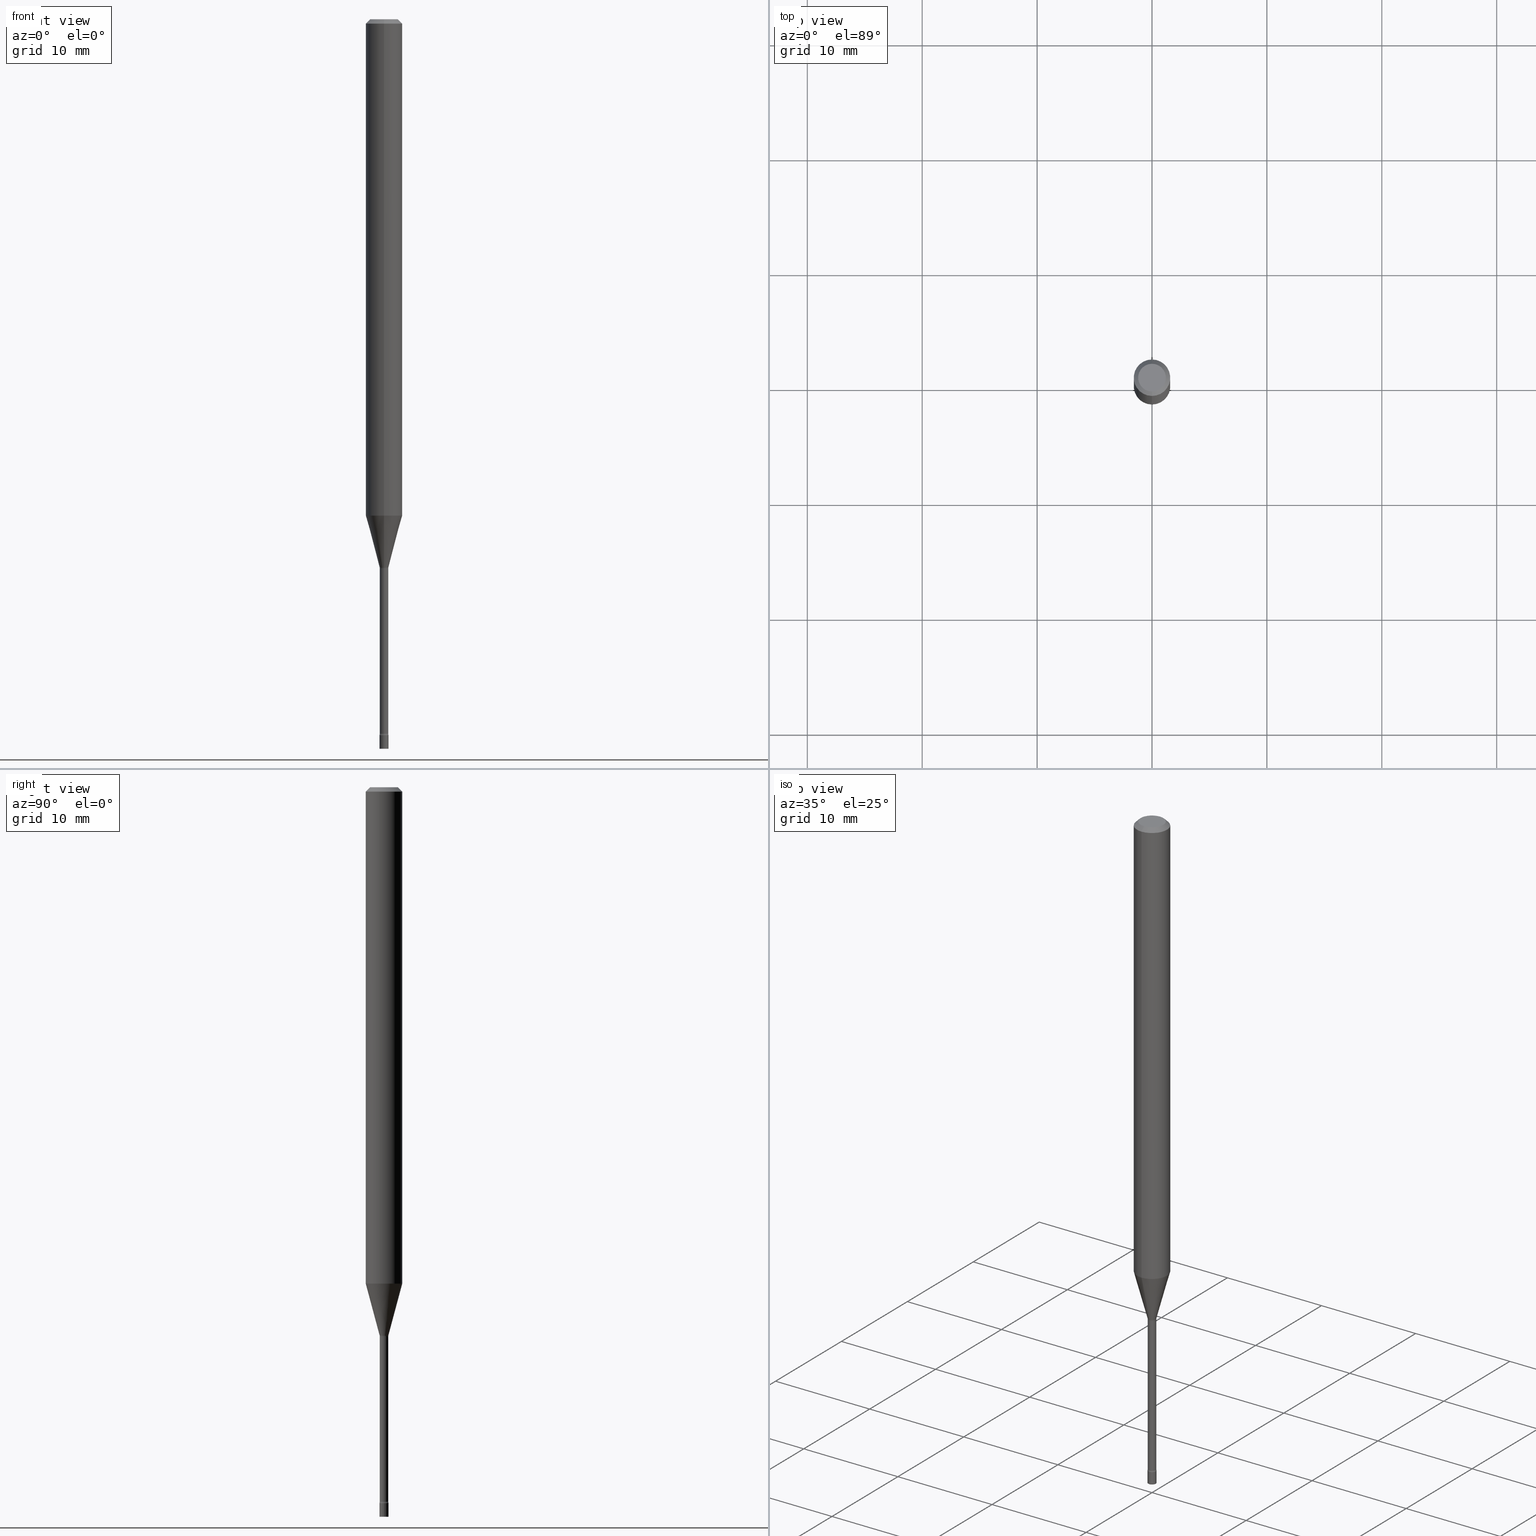
[diagram: canonical four-view strip — front | top / right | iso, engineering-drawing reading convention]
A machine part, canonical four-view strip (front | top / right | iso — engineering-drawing reading convention). The complete STEP part file that produces these views, byte-faithful:
ISO-10303-21;
HEADER;
FILE_DESCRIPTION (( 'STEP AP203' ),
    '1' );
FILE_NAME ('03648.STEP',
    '2024-03-08T22:20:27',
    ( '' ),
    ( '' ),
    'SwSTEP 2.0',
    'SolidWorks 2023',
    '' );
FILE_SCHEMA (( 'CONFIG_CONTROL_DESIGN' ));
ENDSEC;

DATA;
#1 = LINE ( 'NONE', #209, #210 ) ;
#2 = DESIGN_CONTEXT ( 'detailed design', #57, 'design' ) ;
#3 = CARTESIAN_POINT ( 'NONE',  ( 1.067590460480152170E-16, 0.01454999999999149508, -2.447746667724196357 ) ) ;
#4 = CARTESIAN_POINT ( 'NONE',  ( 5.998734981572139453E-29, -8.564603724182235719E-15, -2.452999999999999847 ) ) ;
#5 = DIRECTION ( 'NONE',  ( 2.445477315059340608E-29, -3.491469153650990726E-15, -1.000000000000000000 ) ) ;
#6 = APPROVAL_DATE_TIME ( #365, #257 ) ;
#7 = TOROIDAL_SURFACE ( 'NONE', #84, 0.02955000000000006927, 0.01500000000000002720 ) ;
#8 = AXIS2_PLACEMENT_3D ( 'NONE', #444, #169, #446 ) ;
#9 = DIRECTION ( 'NONE',  ( -2.445477315059340608E-29, 3.491469153650990726E-15, 1.000000000000000000 ) ) ;
#10 = LOCAL_TIME ( 17, 20, 27.00000000000000000, #314 ) ;
#11 = ADVANCED_FACE ( 'NONE', ( #355 ), #401, .F. ) ;
#12 = DIRECTION ( 'NONE',  ( -2.445477315059340608E-29, 3.491469153650990726E-15, 1.000000000000000000 ) ) ;
#13 = ADVANCED_FACE ( 'NONE', ( #108 ), #480, .F. ) ;
#14 = DIRECTION ( 'NONE',  ( -6.982962677686265922E-15, -1.000000000000000000, 3.491469153650990726E-15 ) ) ;
#15 = AXIS2_PLACEMENT_3D ( 'NONE', #72, #22, #242 ) ;
#16 = EDGE_LOOP ( 'NONE', ( #302, #21, #221, #185 ) ) ;
#17 = AXIS2_PLACEMENT_3D ( 'NONE', #187, #353, #106 ) ;
#18 = DIRECTION ( 'NONE',  ( 1.000000000000000000, -6.982962677686238312E-15, 0.000000000000000000 ) ) ;
#19 = VERTEX_POINT ( 'NONE', #472 ) ;
#20 = ADVANCED_FACE ( 'NONE', ( #160 ), #113, .T. ) ;
#21 = ORIENTED_EDGE ( 'NONE', *, *, #411, .T. ) ;
#22 = DIRECTION ( 'NONE',  ( -2.445477315059340608E-29, 3.491469153650990726E-15, 1.000000000000000000 ) ) ;
#23 = PERSON_AND_ORGANIZATION_ROLE ( 'creator' ) ;
#24 = EDGE_CURVE ( 'NONE', #352, #399, #129, .T. ) ;
#25 = AXIS2_PLACEMENT_3D ( 'NONE', #335, #421, #366 ) ;
#26 = PRODUCT_RELATED_PRODUCT_CATEGORY ( 'detail', '', ( #69 ) ) ;
#27 = SECURITY_CLASSIFICATION ( '', '', #308 ) ;
#28 = ORIENTED_EDGE ( 'NONE', *, *, #43, .F. ) ;
#29 = CARTESIAN_POINT ( 'NONE',  ( 4.592832608703820442E-29, -6.557302037693482637E-15, -1.878092501787273161 ) ) ;
#30 = CARTESIAN_POINT ( 'NONE',  ( 4.592832608703820442E-29, -6.557302037693482637E-15, -1.878092501787273161 ) ) ;
#31 = ADVANCED_FACE ( 'NONE', ( #408 ), #7, .F. ) ;
#32 = DIRECTION ( 'NONE',  ( -6.982962677686265922E-15, -1.000000000000000000, 4.370956789862821150E-15 ) ) ;
#33 = DIRECTION ( 'NONE',  ( -6.982962677686266711E-15, -1.000000000000000000, 3.491469153650991121E-15 ) ) ;
#34 = ORIENTED_EDGE ( 'NONE', *, *, #162, .T. ) ;
#35 = APPROVAL_DATE_TIME ( #229, #66 ) ;
#36 = ORIENTED_EDGE ( 'NONE', *, *, #272, .F. ) ;
#37 = DIRECTION ( 'NONE',  ( -2.445477315059340608E-29, 3.491469153650990726E-15, 1.000000000000000000 ) ) ;
#38 = CARTESIAN_POINT ( 'NONE',  ( 3.668215972589017463E-31, -5.237203730476496640E-17, -0.01500000000000003067 ) ) ;
#39 = AXIS2_PLACEMENT_3D ( 'NONE', #255, #516, #107 ) ;
#40 = VERTEX_POINT ( 'NONE', #214 ) ;
#41 = APPLICATION_CONTEXT ( 'configuration controlled 3d designs of mechanical parts and assemblies' ) ;
#42 = CARTESIAN_POINT ( 'NONE',  ( 4.440892098501039328E-16, 0.06249999999999404643, -1.701048163777073130 ) ) ;
#43 = EDGE_CURVE ( 'NONE', #352, #309, #368, .T. ) ;
#44 = FACE_OUTER_BOUND ( 'NONE', #297, .T. ) ;
#45 = EDGE_LOOP ( 'NONE', ( #384, #231 ) ) ;
#46 = CIRCLE ( 'NONE', #110, 0.01549999999999999989 ) ;
#47 = ORGANIZATION ( 'UNSPECIFIED', 'UNSPECIFIED', '' ) ;
#48 = DIRECTION ( 'NONE',  ( -2.445477315059340608E-29, 3.491469153650990726E-15, 1.000000000000000000 ) ) ;
#49 = EDGE_CURVE ( 'NONE', #399, #360, #367, .T. ) ;
#50 = CARTESIAN_POINT ( 'NONE',  ( 0.000000000000000000, 0.000000000000000000, 0.000000000000000000 ) ) ;
#51 = DIRECTION ( 'NONE',  ( 6.982962677686265922E-15, 1.000000000000000000, -3.491469153650990726E-15 ) ) ;
#52 = LINE ( 'NONE', #213, #329 ) ;
#53 = CIRCLE ( 'NONE', #60, 0.04749999999999999362 ) ;
#54 = DIRECTION ( 'NONE',  ( 1.000000000000000000, -7.105427357601001070E-15, 4.926315359316516866E-29 ) ) ;
#55 = PRODUCT_DEFINITION_SHAPE ( 'NONE', 'NONE',  #56 ) ;
#56 = PRODUCT_DEFINITION ( 'UNKNOWN', '', #245, #2 ) ;
#57 = APPLICATION_CONTEXT ( 'configuration controlled 3d designs of mechanical parts and assemblies' ) ;
#58 = DIRECTION ( 'NONE',  ( -1.000000000000000000, 6.982962677686265922E-15, -4.883557194083112901E-29 ) ) ;
#59 = AXIS2_PLACEMENT_3D ( 'NONE', #349, #508, #149 ) ;
#60 = AXIS2_PLACEMENT_3D ( 'NONE', #94, #202, #33 ) ;
#61 = ORIENTED_EDGE ( 'NONE', *, *, #301, .F. ) ;
#62 = LOCAL_TIME ( 17, 20, 27.00000000000000000, #431 ) ;
#63 = CARTESIAN_POINT ( 'NONE',  ( -3.773273898774340269E-16, -0.04749999999999999362, 1.369302950739256933E-16 ) ) ;
#64 = ORIENTED_EDGE ( 'NONE', *, *, #473, .F. ) ;
#65 =( CONVERSION_BASED_UNIT ( 'INCH', #273 ) LENGTH_UNIT ( ) NAMED_UNIT ( #216 ) );
#66 = APPROVAL ( #111, 'UNSPECIFIED' ) ;
#67 = ORIENTED_EDGE ( 'NONE', *, *, #320, .T. ) ;
#68 = DIRECTION ( 'NONE',  ( -6.982962677686265922E-15, -1.000000000000000000, 0.000000000000000000 ) ) ;
#69 = PRODUCT ( '03648', '03648', '', ( #265 ) ) ;
#70 = VERTEX_POINT ( 'NONE', #204 ) ;
#71 = DIRECTION ( 'NONE',  ( -1.000000000000000000, 6.982962677686265922E-15, -4.876176775795935793E-29 ) ) ;
#72 = CARTESIAN_POINT ( 'NONE',  ( 4.592832608703820442E-29, -6.557302037693482637E-15, -1.878092501787273161 ) ) ;
#73 = CIRCLE ( 'NONE', #179, 0.01549999999999999989 ) ;
#74 = PERSON_AND_ORGANIZATION_ROLE ( 'design_owner' ) ;
#75 = DIRECTION ( 'NONE',  ( -6.982962677686265922E-15, -1.000000000000000000, 3.491469153650991121E-15 ) ) ;
#76 = CARTESIAN_POINT ( 'NONE',  ( 0.000000000000000000, 0.000000000000000000, 0.000000000000000000 ) ) ;
#77 = CC_DESIGN_PERSON_AND_ORGANIZATION_ASSIGNMENT ( #311, #23, ( #56 ) ) ;
#78 = CALENDAR_DATE ( 2024, 8, 3 ) ;
#79 = CYLINDRICAL_SURFACE ( 'NONE', #278, 0.06250000000000000000 ) ;
#80 = ORIENTED_EDGE ( 'NONE', *, *, #226, .T. ) ;
#81 = LINE ( 'NONE', #148, #174 ) ;
#82 =( LENGTH_UNIT ( ) NAMED_UNIT ( * ) SI_UNIT ( $, .METRE. ) );
#83 = ORIENTED_EDGE ( 'NONE', *, *, #24, .T. ) ;
#84 = AXIS2_PLACEMENT_3D ( 'NONE', #282, #12, #91 ) ;
#85 = EDGE_CURVE ( 'NONE', #352, #19, #1, .T. ) ;
#86 = ADVANCED_FACE ( 'NONE', ( #322 ), #247, .T. ) ;
#87 = EDGE_LOOP ( 'NONE', ( #463, #459 ) ) ;
#88 = DIRECTION ( 'NONE',  ( -6.982962677686265922E-15, -1.000000000000000000, 3.483106191921935554E-15 ) ) ;
#89 = CALENDAR_DATE ( 2024, 8, 3 ) ;
#90 = CARTESIAN_POINT ( 'NONE',  ( 4.602310636769652825E-29, -6.570879850603192255E-15, -1.881974787463811083 ) ) ;
#91 = DIRECTION ( 'NONE',  ( -6.982962677686265922E-15, -1.000000000000000000, 3.491469153650991121E-15 ) ) ;
#92 = AXIS2_PLACEMENT_3D ( 'NONE', #310, #156, #117 ) ;
#93 = DIRECTION ( 'NONE',  ( 6.982962677686265922E-15, 1.000000000000000000, -3.483106191921935554E-15 ) ) ;
#94 = CARTESIAN_POINT ( 'NONE',  ( 7.070972869777227259E-46, -1.009540489666376163E-31, -2.891448972449637163E-17 ) ) ;
#95 = DIRECTION ( 'NONE',  ( 1.000000000000000000, -6.982962677686301420E-15, 0.000000000000000000 ) ) ;
#96 = CARTESIAN_POINT ( 'NONE',  ( -1.082359215040772245E-16, -0.01550000000000858330, -2.452999999999999847 ) ) ;
#97 = AXIS2_PLACEMENT_3D ( 'NONE', #271, #432, #246 ) ;
#98 = CIRCLE ( 'NONE', #135, 0.04749999999999999362 ) ;
#99 = ORIENTED_EDGE ( 'NONE', *, *, #162, .F. ) ;
#100 = EDGE_LOOP ( 'NONE', ( #482, #197, #518, #262 ) ) ;
#101 = CIRCLE ( 'NONE', #393, 0.06250000000000000000 ) ;
#102 = CARTESIAN_POINT ( 'NONE',  ( 4.440892098501044258E-16, 0.06249999999999995143, -0.01500000000000024751 ) ) ;
#103 = CALENDAR_DATE ( 2024, 8, 3 ) ;
#104 = EDGE_CURVE ( 'NONE', #235, #196, #276, .T. ) ;
#105 = DIRECTION ( 'NONE',  ( -6.982962677686265922E-15, -1.000000000000000000, 3.491469153650991121E-15 ) ) ;
#106 = DIRECTION ( 'NONE',  ( 1.000000000000000000, 0.000000000000000000, 0.000000000000000000 ) ) ;
#107 = DIRECTION ( 'NONE',  ( -6.982962677686265922E-15, -1.000000000000000000, 0.000000000000000000 ) ) ;
#108 = FACE_OUTER_BOUND ( 'NONE', #120, .T. ) ;
#109 = CLOSED_SHELL ( 'NONE', ( #86, #137, #359, #145 ) ) ;
#110 = AXIS2_PLACEMENT_3D ( 'NONE', #506, #470, #18 ) ;
#111 = APPROVAL_STATUS ( 'not_yet_approved' ) ;
#112 = CC_DESIGN_SECURITY_CLASSIFICATION ( #27, ( #245 ) ) ;
#113 = CYLINDRICAL_SURFACE ( 'NONE', #97, 0.06250000000000000000 ) ;
#114 = DIRECTION ( 'NONE',  ( -1.000000000000000000, 6.982962677686265922E-15, -4.883557194083112901E-29 ) ) ;
#115 = PERSON_AND_ORGANIZATION_ROLE ( 'classification_officer' ) ;
#116 = ORIENTED_EDGE ( 'NONE', *, *, #409, .T. ) ;
#117 = DIRECTION ( 'NONE',  ( -6.982962677686265922E-15, -1.000000000000000000, 0.000000000000000000 ) ) ;
#118 =( NAMED_UNIT ( * ) PLANE_ANGLE_UNIT ( ) SI_UNIT ( $, .RADIAN. ) );
#119 = ADVANCED_FACE ( 'NONE', ( #126 ), #222, .T. ) ;
#120 = EDGE_LOOP ( 'NONE', ( #296, #99, #240, #434 ) ) ;
#121 = AXIS2_PLACEMENT_3D ( 'NONE', #50, #176, #170 ) ;
#122 = FACE_OUTER_BOUND ( 'NONE', #512, .T. ) ;
#123 = AXIS2_PLACEMENT_3D ( 'NONE', #207, #133, #254 ) ;
#124 = ORIENTED_EDGE ( 'NONE', *, *, #370, .T. ) ;
#125 = DIRECTION ( 'NONE',  ( -6.982962677686265922E-15, -1.000000000000000000, 0.000000000000000000 ) ) ;
#126 = FACE_OUTER_BOUND ( 'NONE', #500, .T. ) ;
#127 = CC_DESIGN_PERSON_AND_ORGANIZATION_ASSIGNMENT ( #509, #151, ( #245 ) ) ;
#128 = PERSON_AND_ORGANIZATION ( #445, #47 ) ;
#129 = CIRCLE ( 'NONE', #414, 0.01455000000000004033 ) ;
#130 = CIRCLE ( 'NONE', #415, 0.01549999999999999989 ) ;
#131 = FACE_OUTER_BOUND ( 'NONE', #190, .T. ) ;
#132 = DIRECTION ( 'NONE',  ( -2.438088387897960049E-29, 3.491481338843145188E-15, 1.000000000000000000 ) ) ;
#133 = DIRECTION ( 'NONE',  ( 1.000000000000000000, -7.105427357601001070E-15, 4.926315359316516866E-29 ) ) ;
#134 = CARTESIAN_POINT ( 'NONE',  ( -1.016021069602891557E-16, -0.01455000000000657157, -1.881974787463811083 ) ) ;
#135 = AXIS2_PLACEMENT_3D ( 'NONE', #392, #37, #423 ) ;
#136 = ADVANCED_BREP_SHAPE_REPRESENTATION ( '03648', ( #437, #442, #17 ), #511 ) ;
#137 = ADVANCED_FACE ( 'NONE', ( #364 ), #453, .T. ) ;
#138 = ORIENTED_EDGE ( 'NONE', *, *, #215, .F. ) ;
#139 = VERTEX_POINT ( 'NONE', #288 ) ;
#140 = AXIS2_PLACEMENT_3D ( 'NONE', #168, #54, #243 ) ;
#141 = AXIS2_PLACEMENT_3D ( 'NONE', #205, #58, #412 ) ;
#142 = VERTEX_POINT ( 'NONE', #96 ) ;
#143 = ORIENTED_EDGE ( 'NONE', *, *, #473, .T. ) ;
#144 = FACE_OUTER_BOUND ( 'NONE', #441, .T. ) ;
#145 = ADVANCED_FACE ( 'NONE', ( #406 ), #212, .T. ) ;
#146 = DIRECTION ( 'NONE',  ( -2.445477315059340608E-29, 3.491469153650990726E-15, 1.000000000000000000 ) ) ;
#147 = EDGE_LOOP ( 'NONE', ( #219, #292, #80, #166 ) ) ;
#148 = CARTESIAN_POINT ( 'NONE',  ( -4.364351673553916201E-16, -0.06250000000000000000, 2.182168221031869204E-16 ) ) ;
#149 = DIRECTION ( 'NONE',  ( -6.982962677686265922E-15, -1.000000000000000000, 3.491469153650990726E-15 ) ) ;
#150 = CONICAL_SURFACE ( 'NONE', #351, 0.01506111260566398054, 0.2617993877991499074 ) ;
#151 = PERSON_AND_ORGANIZATION_ROLE ( 'design_supplier' ) ;
#152 = DIRECTION ( 'NONE',  ( 1.000000000000000000, -6.982962677686266711E-15, 4.876176775795935232E-29 ) ) ;
#153 = CC_DESIGN_APPROVAL ( #257, ( #27 ) ) ;
#154 = ORIENTED_EDGE ( 'NONE', *, *, #241, .F. ) ;
#155 = EDGE_CURVE ( 'NONE', #418, #360, #361, .T. ) ;
#156 = DIRECTION ( 'NONE',  ( -2.445477315059340608E-29, 3.491469153650990726E-15, 1.000000000000000000 ) ) ;
#157 = CARTESIAN_POINT ( 'NONE',  ( 6.113672015462842613E-29, -8.728703347107864943E-15, -2.500000000000000000 ) ) ;
#158 = DIRECTION ( 'NONE',  ( -2.445468806185136877E-29, 3.491481338843145188E-15, 1.000000000000000000 ) ) ;
#159 = DIRECTION ( 'NONE',  ( -6.982962677686265922E-15, -1.000000000000000000, 0.000000000000000000 ) ) ;
#160 = FACE_OUTER_BOUND ( 'NONE', #16, .T. ) ;
#161 = DIRECTION ( 'NONE',  ( -2.445477315059340608E-29, 3.491469153650990726E-15, 1.000000000000000000 ) ) ;
#162 = EDGE_CURVE ( 'NONE', #418, #70, #236, .T. ) ;
#163 = DATE_TIME_ROLE ( 'classification_date' ) ;
#164 = DIRECTION ( 'NONE',  ( -2.445477315059340608E-29, 3.491469153650990726E-15, 1.000000000000000000 ) ) ;
#165 = DIRECTION ( 'NONE',  ( -2.445477315059340608E-29, 3.491469153650990726E-15, 1.000000000000000000 ) ) ;
#166 = ORIENTED_EDGE ( 'NONE', *, *, #306, .F. ) ;
#167 = CIRCLE ( 'NONE', #427, 0.06250000000000000000 ) ;
#168 = CARTESIAN_POINT ( 'NONE',  ( 2.099653784171699273E-16, 0.02954999999999152402, -2.447746667724196357 ) ) ;
#169 = DIRECTION ( 'NONE',  ( -2.445477315059340608E-29, 3.491469153650990726E-15, 1.000000000000000000 ) ) ;
#170 = DIRECTION ( 'NONE',  ( 1.000000000000000000, -6.982962677686266711E-15, 4.876176775795935232E-29 ) ) ;
#171 = LINE ( 'NONE', #327, #258 ) ;
#172 = DIRECTION ( 'NONE',  ( 1.000000000000000000, -6.982962677686265922E-15, 4.876176775795935793E-29 ) ) ;
#173 = CIRCLE ( 'NONE', #439, 0.06250000000000000000 ) ;
#174 = VECTOR ( 'NONE', #232, 39.37007874015748143 ) ;
#175 = CARTESIAN_POINT ( 'NONE',  ( -1.016021069602755972E-16, -0.01455000000000858731, -2.447746667724196357 ) ) ;
#176 = DIRECTION ( 'NONE',  ( -2.445468806185136597E-29, 3.491481338843145583E-15, 1.000000000000000000 ) ) ;
#177 = EDGE_CURVE ( 'NONE', #235, #139, #81, .T. ) ;
#178 = AXIS2_PLACEMENT_3D ( 'NONE', #443, #467, #75 ) ;
#179 = AXIS2_PLACEMENT_3D ( 'NONE', #447, #164, #159 ) ;
#180 = VERTEX_POINT ( 'NONE', #102 ) ;
#181 = EDGE_LOOP ( 'NONE', ( #375, #67, #358, #280 ) ) ;
#182 = ORIENTED_EDGE ( 'NONE', *, *, #226, .F. ) ;
#183 = COORDINATED_UNIVERSAL_TIME_OFFSET ( 5, 0, .BEHIND. ) ;
#184 = CIRCLE ( 'NONE', #462, 0.01549999999999999989 ) ;
#185 = ORIENTED_EDGE ( 'NONE', *, *, #268, .F. ) ;
#186 = CARTESIAN_POINT ( 'NONE',  ( 5.998734981572139453E-29, -8.564603724182235719E-15, -2.452999999999999847 ) ) ;
#187 = CARTESIAN_POINT ( 'NONE',  ( 0.000000000000000000, 0.000000000000000000, 0.000000000000000000 ) ) ;
#188 = ORIENTED_EDGE ( 'NONE', *, *, #230, .F. ) ;
#189 = CYLINDRICAL_SURFACE ( 'NONE', #305, 0.01549999999999999989 ) ;
#190 = EDGE_LOOP ( 'NONE', ( #460, #182 ) ) ;
#191 = PERSON_AND_ORGANIZATION ( #445, #47 ) ;
#192 = CARTESIAN_POINT ( 'NONE',  ( 0.01549999999999999989, -8.836939268612002897E-15, -2.500000000000000000 ) ) ;
#193 = EDGE_CURVE ( 'NONE', #479, #194, #98, .T. ) ;
#194 = VERTEX_POINT ( 'NONE', #497 ) ;
#195 = COORDINATED_UNIVERSAL_TIME_OFFSET ( 5, 0, .BEHIND. ) ;
#196 = VERTEX_POINT ( 'NONE', #42 ) ;
#197 = ORIENTED_EDGE ( 'NONE', *, *, #85, .T. ) ;
#199 = EDGE_CURVE ( 'NONE', #399, #352, #383, .T. ) ;
#198 = SHAPE_DEFINITION_REPRESENTATION ( #55, #136 ) ;
#200 = DIRECTION ( 'NONE',  ( -6.982962677686265922E-15, -1.000000000000000000, 3.483106191921935554E-15 ) ) ;
#201 = ORIENTED_EDGE ( 'NONE', *, *, #155, .F. ) ;
#202 = DIRECTION ( 'NONE',  ( -2.445477315059340608E-29, 3.491469153650990726E-15, 1.000000000000000000 ) ) ;
#203 = CARTESIAN_POINT ( 'NONE',  ( 3.668215972589017463E-31, -5.237203730476496640E-17, -0.01500000000000003067 ) ) ;
#204 = CARTESIAN_POINT ( 'NONE',  ( 2.755524256971723102E-16, 0.01506111260565742675, -1.878092501787273161 ) ) ;
#205 = CARTESIAN_POINT ( 'NONE',  ( -2.063465471255697556E-16, -0.02955000000000861451, -2.447746667724196357 ) ) ;
#206 = APPROVAL_ROLE ( '' ) ;
#207 = CARTESIAN_POINT ( 'NONE',  ( 2.099653784171555799E-16, 0.02954999999999343221, -1.881974787463811083 ) ) ;
#208 = ADVANCED_FACE ( 'NONE', ( #464 ), #150, .T. ) ;
#209 = CARTESIAN_POINT ( 'NONE',  ( 1.033839680530947034E-16, 0.01455000000000001951, -5.080087618562198931E-17 ) ) ;
#210 = VECTOR ( 'NONE', #9, 39.37007874015748143 ) ;
#211 = VECTOR ( 'NONE', #332, 39.37007874015748143 ) ;
#212 = PLANE ( 'NONE',  #407 ) ;
#213 = CARTESIAN_POINT ( 'NONE',  ( 1.070156415442400836E-16, 0.01506111260565742502, -1.878092501787273161 ) ) ;
#214 = CARTESIAN_POINT ( 'NONE',  ( 0.01549999999999999989, -8.672839645686373673E-15, -2.452999999999999847 ) ) ;
#215 = EDGE_CURVE ( 'NONE', #194, #479, #53, .T. ) ;
#216 = DIMENSIONAL_EXPONENTS ( 1.000000000000000000, 0.000000000000000000, 0.000000000000000000, 0.000000000000000000, 0.000000000000000000, 0.000000000000000000, 0.000000000000000000 ) ;
#217 = VECTOR ( 'NONE', #158, 39.37007874015748143 ) ;
#218 = CARTESIAN_POINT ( 'NONE',  ( 4.602326650256374158E-29, -6.570856918378775869E-15, -1.881974787463811083 ) ) ;
#219 = ORIENTED_EDGE ( 'NONE', *, *, #24, .F. ) ;
#220 = VERTEX_POINT ( 'NONE', #192 ) ;
#221 = ORIENTED_EDGE ( 'NONE', *, *, #177, .T. ) ;
#222 = CONICAL_SURFACE ( 'NONE', #252, 0.06250000000000000000, 0.7853981633974483900 ) ;
#223 = VECTOR ( 'NONE', #468, 39.37007874015748143 ) ;
#224 = LOCAL_TIME ( 17, 20, 27.00000000000000000, #183 ) ;
#225 = ORIENTED_EDGE ( 'NONE', *, *, #272, .T. ) ;
#226 = EDGE_CURVE ( 'NONE', #309, #142, #73, .T. ) ;
#227 = APPLICATION_PROTOCOL_DEFINITION ( 'international standard', 'config_control_design', 1994, #57 ) ;
#228 = CARTESIAN_POINT ( 'NONE',  ( -1.051711872097357942E-16, -0.01506111260567053779, -1.878092501787273161 ) ) ;
#229 = DATE_AND_TIME ( #78, #62 ) ;
#230 = EDGE_CURVE ( 'NONE', #418, #235, #303, .T. ) ;
#231 = ORIENTED_EDGE ( 'NONE', *, *, #343, .T. ) ;
#232 = DIRECTION ( 'NONE',  ( -2.445477315059340608E-29, 3.491469153650990726E-15, 1.000000000000000000 ) ) ;
#233 = DATE_AND_TIME ( #304, #394 ) ;
#234 = APPROVAL ( #380, 'UNSPECIFIED' ) ;
#235 = VERTEX_POINT ( 'NONE', #424 ) ;
#236 = CIRCLE ( 'NONE', #319, 0.01506111260566398054 ) ;
#237 = DIRECTION ( 'NONE',  ( -6.982962677686265922E-15, -1.000000000000000000, 0.000000000000000000 ) ) ;
#238 = FACE_OUTER_BOUND ( 'NONE', #333, .T. ) ;
#239 = ORIENTED_EDGE ( 'NONE', *, *, #104, .F. ) ;
#240 = ORIENTED_EDGE ( 'NONE', *, *, #155, .T. ) ;
#241 = EDGE_CURVE ( 'NONE', #40, #259, #130, .T. ) ;
#242 = DIRECTION ( 'NONE',  ( -6.982962677686265922E-15, -1.000000000000000000, 0.000000000000000000 ) ) ;
#243 = DIRECTION ( 'NONE',  ( 7.105427357600999492E-15, 1.000000000000000000, 0.000000000000000000 ) ) ;
#244 = CIRCLE ( 'NONE', #123, 0.01500000000000002720 ) ;
#245 = PRODUCT_DEFINITION_FORMATION_WITH_SPECIFIED_SOURCE ( 'ANY', '', #69, .NOT_KNOWN. ) ;
#246 = DIRECTION ( 'NONE',  ( -6.982962677686265922E-15, -1.000000000000000000, 3.491469153650990726E-15 ) ) ;
#247 = CYLINDRICAL_SURFACE ( 'NONE', #121, 0.01549999999999999989 ) ;
#248 = DIRECTION ( 'NONE',  ( 6.982962677686265922E-15, 1.000000000000000000, -3.483106191921935554E-15 ) ) ;
#249 = CARTESIAN_POINT ( 'NONE',  ( 4.159874696340177059E-29, -5.939157192702308277E-15, -1.701048163777072908 ) ) ;
#250 = ADVANCED_FACE ( 'NONE', ( #260 ), #334, .T. ) ;
#251 = CARTESIAN_POINT ( 'NONE',  ( 3.668215972589017463E-31, -5.237203730476496640E-17, -0.01500000000000003067 ) ) ;
#252 = AXIS2_PLACEMENT_3D ( 'NONE', #251, #448, #93 ) ;
#253 = ADVANCED_FACE ( 'NONE', ( #430 ), #501, .T. ) ;
#254 = DIRECTION ( 'NONE',  ( 7.105427357601000281E-15, 1.000000000000000000, 0.000000000000000000 ) ) ;
#255 = CARTESIAN_POINT ( 'NONE',  ( 5.998755853840561706E-29, -8.564573833905879459E-15, -2.452999999999999847 ) ) ;
#256 = EDGE_LOOP ( 'NONE', ( #34, #336, #239, #188 ) ) ;
#257 = APPROVAL ( #323, 'UNSPECIFIED' ) ;
#258 = VECTOR ( 'NONE', #487, 39.37007874015748143 ) ;
#259 = VERTEX_POINT ( 'NONE', #264 ) ;
#260 = FACE_OUTER_BOUND ( 'NONE', #100, .T. ) ;
#261 = EDGE_CURVE ( 'NONE', #70, #418, #290, .T. ) ;
#262 = ORIENTED_EDGE ( 'NONE', *, *, #49, .F. ) ;
#263 = DATE_AND_TIME ( #103, #224 ) ;
#264 = CARTESIAN_POINT ( 'NONE',  ( -0.01549999999999999989, -8.536519411602235887E-15, -2.452999999999999847 ) ) ;
#265 = MECHANICAL_CONTEXT ( 'NONE', #41, 'mechanical' ) ;
#266 = AXIS2_PLACEMENT_3D ( 'NONE', #287, #405, #51 ) ;
#267 = ORIENTED_EDGE ( 'NONE', *, *, #261, .F. ) ;
#268 = EDGE_CURVE ( 'NONE', #180, #139, #167, .T. ) ;
#269 = DIRECTION ( 'NONE',  ( 1.000000000000000000, -6.982962677686238312E-15, 0.000000000000000000 ) ) ;
#270 = APPROVAL_ROLE ( '' ) ;
#271 = CARTESIAN_POINT ( 'NONE',  ( 0.000000000000000000, 0.000000000000000000, 0.000000000000000000 ) ) ;
#272 = EDGE_CURVE ( 'NONE', #397, #259, #283, .T. ) ;
#273 = LENGTH_MEASURE_WITH_UNIT ( LENGTH_MEASURE( 0.02539999999999999897 ), #82 );
#274 = ORIENTED_EDGE ( 'NONE', *, *, #499, .T. ) ;
#275 = CARTESIAN_POINT ( 'NONE',  ( 4.592832608703820442E-29, -6.557302037693482637E-15, -1.878092501787273161 ) ) ;
#276 = CIRCLE ( 'NONE', #338, 0.06250000000000000000 ) ;
#277 = CARTESIAN_POINT ( 'NONE',  ( 3.668215972589017463E-31, -5.237203730476496640E-17, -0.01500000000000003067 ) ) ;
#278 = AXIS2_PLACEMENT_3D ( 'NONE', #481, #347, #299 ) ;
#279 = ADVANCED_FACE ( 'NONE', ( #44 ), #498, .T. ) ;
#280 = ORIENTED_EDGE ( 'NONE', *, *, #177, .F. ) ;
#281 = CARTESIAN_POINT ( 'NONE',  ( 4.364351673553919652E-16, 0.06249999999999995143, -0.01500000000000024751 ) ) ;
#282 = CARTESIAN_POINT ( 'NONE',  ( 5.985888121363136129E-29, -8.546261812574526278E-15, -2.447746667724196357 ) ) ;
#283 = LINE ( 'NONE', #313, #456 ) ;
#284 = EDGE_CURVE ( 'NONE', #70, #196, #52, .T. ) ;
#285 = AXIS2_PLACEMENT_3D ( 'NONE', #90, #354, #362 ) ;
#286 = APPROVAL_PERSON_ORGANIZATION ( #346, #234, #505 ) ;
#287 = CARTESIAN_POINT ( 'NONE',  ( 3.316907271900976096E-16, 0.04749999999999999362, -1.803020296606702446E-16 ) ) ;
#288 = CARTESIAN_POINT ( 'NONE',  ( -4.364351673553912750E-16, -0.06250000000000005551, -0.01499999999999981209 ) ) ;
#289 = ADVANCED_FACE ( 'NONE', ( #238 ), #339, .F. ) ;
#290 = CIRCLE ( 'NONE', #15, 0.01506111260566398054 ) ;
#291 = CC_DESIGN_DATE_AND_TIME_ASSIGNMENT ( #436, #163, ( #27 ) ) ;
#292 = ORIENTED_EDGE ( 'NONE', *, *, #43, .T. ) ;
#293 = ORIENTED_EDGE ( 'NONE', *, *, #373, .F. ) ;
#294 = ORIENTED_EDGE ( 'NONE', *, *, #411, .F. ) ;
#295 = AXIS2_PLACEMENT_3D ( 'NONE', #474, #114, #433 ) ;
#296 = ORIENTED_EDGE ( 'NONE', *, *, #370, .F. ) ;
#297 = EDGE_LOOP ( 'NONE', ( #64, #138, #318, #389 ) ) ;
#298 = CARTESIAN_POINT ( 'NONE',  ( 0.000000000000000000, 0.000000000000000000, 0.000000000000000000 ) ) ;
#299 = DIRECTION ( 'NONE',  ( -6.982962677686265922E-15, -1.000000000000000000, 3.491469153650990726E-15 ) ) ;
#300 = CARTESIAN_POINT ( 'NONE',  ( 1.082359215041971067E-16, 0.01549999999999143382, -2.452999999999999847 ) ) ;
#301 = EDGE_CURVE ( 'NONE', #19, #360, #492, .T. ) ;
#302 = ORIENTED_EDGE ( 'NONE', *, *, #320, .F. ) ;
#303 = LINE ( 'NONE', #228, #223 ) ;
#304 = CALENDAR_DATE ( 2024, 8, 3 ) ;
#305 = AXIS2_PLACEMENT_3D ( 'NONE', #387, #503, #152 ) ;
#306 = EDGE_CURVE ( 'NONE', #399, #142, #461, .T. ) ;
#307 = ORIENTED_EDGE ( 'NONE', *, *, #499, .F. ) ;
#308 = SECURITY_CLASSIFICATION_LEVEL ( 'unclassified' ) ;
#309 = VERTEX_POINT ( 'NONE', #417 ) ;
#310 = CARTESIAN_POINT ( 'NONE',  ( 5.985908948931614899E-29, -8.546231986311032858E-15, -2.447746667724196357 ) ) ;
#311 = PERSON_AND_ORGANIZATION ( #445, #47 ) ;
#312 = ORIENTED_EDGE ( 'NONE', *, *, #230, .T. ) ;
#313 = CARTESIAN_POINT ( 'NONE',  ( -0.01549999999999999989, 1.101341240428155280E-16, -7.624349389895103058E-31 ) ) ;
#314 = COORDINATED_UNIVERSAL_TIME_OFFSET ( 5, 0, .BEHIND. ) ;
#315 = DIRECTION ( 'NONE',  ( -6.982962677686266711E-15, -1.000000000000000000, 0.000000000000000000 ) ) ;
#316 = EDGE_CURVE ( 'NONE', #397, #220, #486, .T. ) ;
#317 = CLOSED_SHELL ( 'NONE', ( #289, #250, #11, #119, #451, #208, #507, #20, #279, #321, #491, #31, #253, #13 ) ) ;
#318 = ORIENTED_EDGE ( 'NONE', *, *, #373, .T. ) ;
#319 = AXIS2_PLACEMENT_3D ( 'NONE', #29, #477, #345 ) ;
#320 = EDGE_CURVE ( 'NONE', #196, #180, #171, .T. ) ;
#321 = ADVANCED_FACE ( 'NONE', ( #452 ), #490, .F. ) ;
#322 = FACE_OUTER_BOUND ( 'NONE', #344, .T. ) ;
#323 = APPROVAL_STATUS ( 'not_yet_approved' ) ;
#324 = LINE ( 'NONE', #281, #325 ) ;
#325 = VECTOR ( 'NONE', #328, 39.37007874015748143 ) ;
#326 = CARTESIAN_POINT ( 'NONE',  ( 4.159874696340177059E-29, -5.939157192702308277E-15, -1.701048163777072908 ) ) ;
#327 = CARTESIAN_POINT ( 'NONE',  ( 4.440892098500625669E-16, 0.06250000000000000000, -2.182168221031869204E-16 ) ) ;
#328 = DIRECTION ( 'NONE',  ( 4.937700262164548042E-15, 0.7071067811865451302, -0.7071067811865499042 ) ) ;
#329 = VECTOR ( 'NONE', #371, 39.37007874015748854 ) ;
#330 = CC_DESIGN_APPROVAL ( #234, ( #56 ) ) ;
#331 = ORIENTED_EDGE ( 'NONE', *, *, #261, .T. ) ;
#332 = DIRECTION ( 'NONE',  ( -4.851104656540964275E-15, -0.7071067811865500152, -0.7071067811865450192 ) ) ;
#333 = EDGE_LOOP ( 'NONE', ( #267, #124, #340, #201 ) ) ;
#334 = CYLINDRICAL_SURFACE ( 'NONE', #403, 0.01455000000000001951 ) ;
#335 = CARTESIAN_POINT ( 'NONE',  ( 6.113672015462842613E-29, -8.728703347107864943E-15, -2.500000000000000000 ) ) ;
#336 = ORIENTED_EDGE ( 'NONE', *, *, #284, .T. ) ;
#337 = LINE ( 'NONE', #478, #217 ) ;
#338 = AXIS2_PLACEMENT_3D ( 'NONE', #326, #484, #488 ) ;
#339 = TOROIDAL_SURFACE ( 'NONE', #285, 0.02954999999999999988, 0.01500000000000002547 ) ;
#340 = ORIENTED_EDGE ( 'NONE', *, *, #301, .T. ) ;
#341 = DIRECTION ( 'NONE',  ( -2.445468806185136597E-29, 3.491481338843145583E-15, 1.000000000000000000 ) ) ;
#342 = APPLICATION_PROTOCOL_DEFINITION ( 'international standard', 'config_control_design', 1994, #41 ) ;
#343 = EDGE_CURVE ( 'NONE', #259, #40, #46, .T. ) ;
#344 = EDGE_LOOP ( 'NONE', ( #116, #225, #154, #307 ) ) ;
#345 = DIRECTION ( 'NONE',  ( -6.982962677686265922E-15, -1.000000000000000000, 0.000000000000000000 ) ) ;
#346 = PERSON_AND_ORGANIZATION ( #445, #47 ) ;
#347 = DIRECTION ( 'NONE',  ( -2.445477315059340608E-29, 3.491469153650990726E-15, 1.000000000000000000 ) ) ;
#348 = CC_DESIGN_PERSON_AND_ORGANIZATION_ASSIGNMENT ( #386, #74, ( #69 ) ) ;
#349 = CARTESIAN_POINT ( 'NONE',  ( 4.602310636769652825E-29, -6.570879850603192255E-15, -1.881974787463811083 ) ) ;
#350 = PERSON_AND_ORGANIZATION_ROLE ( 'creator' ) ;
#351 = AXIS2_PLACEMENT_3D ( 'NONE', #275, #435, #237 ) ;
#352 = VERTEX_POINT ( 'NONE', #3 ) ;
#353 = DIRECTION ( 'NONE',  ( 0.000000000000000000, 0.000000000000000000, 1.000000000000000000 ) ) ;
#354 = DIRECTION ( 'NONE',  ( -2.445477315059340608E-29, 3.491469153650990726E-15, 1.000000000000000000 ) ) ;
#355 = FACE_OUTER_BOUND ( 'NONE', #147, .T. ) ;
#356 = EDGE_CURVE ( 'NONE', #360, #19, #449, .T. ) ;
#357 = CALENDAR_DATE ( 2024, 8, 3 ) ;
#358 = ORIENTED_EDGE ( 'NONE', *, *, #400, .F. ) ;
#359 = ADVANCED_FACE ( 'NONE', ( #122 ), #189, .T. ) ;
#360 = VERTEX_POINT ( 'NONE', #134 ) ;
#361 = CIRCLE ( 'NONE', #295, 0.01500000000000002720 ) ;
#362 = DIRECTION ( 'NONE',  ( -6.982962677686265922E-15, -1.000000000000000000, 3.491469153650990726E-15 ) ) ;
#363 = CARTESIAN_POINT ( 'NONE',  ( 5.985908948931614899E-29, -8.546231986311032858E-15, -2.447746667724196357 ) ) ;
#364 = FACE_OUTER_BOUND ( 'NONE', #45, .T. ) ;
#365 = DATE_AND_TIME ( #357, #10 ) ;
#366 = DIRECTION ( 'NONE',  ( 1.000000000000000000, -6.982962677686301420E-15, 0.000000000000000000 ) ) ;
#367 = LINE ( 'NONE', #402, #438 ) ;
#368 = CIRCLE ( 'NONE', #140, 0.01500000000000003240 ) ;
#369 = AXIS2_PLACEMENT_3D ( 'NONE', #203, #5, #248 ) ;
#370 = EDGE_CURVE ( 'NONE', #70, #19, #244, .T. ) ;
#371 = DIRECTION ( 'NONE',  ( 1.839019923739597554E-15, 0.2588190451025245697, 0.9659258262890670910 ) ) ;
#372 = ORIENTED_EDGE ( 'NONE', *, *, #193, .F. ) ;
#373 = EDGE_CURVE ( 'NONE', #194, #180, #324, .T. ) ;
#374 = LINE ( 'NONE', #458, #211 ) ;
#375 = ORIENTED_EDGE ( 'NONE', *, *, #104, .T. ) ;
#376 = DIRECTION ( 'NONE',  ( -2.445477315059340608E-29, 3.491469153650990726E-15, 1.000000000000000000 ) ) ;
#377 = ORIENTED_EDGE ( 'NONE', *, *, #382, .T. ) ;
#378 = DIRECTION ( 'NONE',  ( -6.982962677686265922E-15, -1.000000000000000000, 3.491469153650991121E-15 ) ) ;
#379 = UNCERTAINTY_MEASURE_WITH_UNIT (LENGTH_MEASURE( 1.000000000000000082E-05 ), #65, 'distance_accuracy_value', 'NONE');
#380 = APPROVAL_STATUS ( 'not_yet_approved' ) ;
#381 = ORIENTED_EDGE ( 'NONE', *, *, #400, .T. ) ;
#382 = EDGE_CURVE ( 'NONE', #142, #309, #510, .T. ) ;
#383 = CIRCLE ( 'NONE', #92, 0.01455000000000004033 ) ;
#384 = ORIENTED_EDGE ( 'NONE', *, *, #241, .T. ) ;
#385 = CC_DESIGN_PERSON_AND_ORGANIZATION_ASSIGNMENT ( #475, #115, ( #27 ) ) ;
#386 = PERSON_AND_ORGANIZATION ( #445, #47 ) ;
#387 = CARTESIAN_POINT ( 'NONE',  ( 0.000000000000000000, 0.000000000000000000, 0.000000000000000000 ) ) ;
#388 = CARTESIAN_POINT ( 'NONE',  ( -0.01549999999999999989, -8.536519411602235887E-15, -2.500000000000000000 ) ) ;
#389 = ORIENTED_EDGE ( 'NONE', *, *, #268, .T. ) ;
#390 = CARTESIAN_POINT ( 'NONE',  ( -1.051711872097357942E-16, -0.01506111260567053779, -1.878092501787273161 ) ) ;
#391 = ORIENTED_EDGE ( 'NONE', *, *, #316, .F. ) ;
#392 = CARTESIAN_POINT ( 'NONE',  ( 7.070972869777227259E-46, -1.009540489666376163E-31, -2.891448972449637163E-17 ) ) ;
#393 = AXIS2_PLACEMENT_3D ( 'NONE', #277, #165, #200 ) ;
#394 = LOCAL_TIME ( 17, 20, 27.00000000000000000, #195 ) ;
#395 = ORIENTED_EDGE ( 'NONE', *, *, #85, .F. ) ;
#396 = COORDINATED_UNIVERSAL_TIME_OFFSET ( 5, 0, .BEHIND. ) ;
#397 = VERTEX_POINT ( 'NONE', #388 ) ;
#398 = DIRECTION ( 'NONE',  ( -2.445468806185136877E-29, 3.491481338843145188E-15, 1.000000000000000000 ) ) ;
#399 = VERTEX_POINT ( 'NONE', #175 ) ;
#400 = EDGE_CURVE ( 'NONE', #139, #180, #101, .T. ) ;
#401 = TOROIDAL_SURFACE ( 'NONE', #178, 0.02955000000000006927, 0.01500000000000002720 ) ;
#402 = CARTESIAN_POINT ( 'NONE',  ( -1.016021069603353041E-16, -0.01455000000000001951, 5.080087618562198931E-17 ) ) ;
#403 = AXIS2_PLACEMENT_3D ( 'NONE', #298, #419, #378 ) ;
#404 = DIRECTION ( 'NONE',  ( -2.445477315059340608E-29, 3.491469153650990726E-15, 1.000000000000000000 ) ) ;
#405 = DIRECTION ( 'NONE',  ( 2.445477315059340047E-29, -3.491469153650990726E-15, -1.000000000000000000 ) ) ;
#406 = FACE_OUTER_BOUND ( 'NONE', #410, .T. ) ;
#407 = AXIS2_PLACEMENT_3D ( 'NONE', #513, #504, #71 ) ;
#408 = FACE_OUTER_BOUND ( 'NONE', #426, .T. ) ;
#409 = EDGE_CURVE ( 'NONE', #220, #397, #184, .T. ) ;
#410 = EDGE_LOOP ( 'NONE', ( #413, #391 ) ) ;
#411 = EDGE_CURVE ( 'NONE', #196, #235, #173, .T. ) ;
#412 = DIRECTION ( 'NONE',  ( -6.982962677686262766E-15, -1.000000000000000000, 0.000000000000000000 ) ) ;
#413 = ORIENTED_EDGE ( 'NONE', *, *, #409, .F. ) ;
#414 = AXIS2_PLACEMENT_3D ( 'NONE', #363, #404, #125 ) ;
#415 = AXIS2_PLACEMENT_3D ( 'NONE', #186, #341, #269 ) ;
#416 = AXIS2_PLACEMENT_3D ( 'NONE', #300, #485, #14 ) ;
#417 = CARTESIAN_POINT ( 'NONE',  ( 1.101341240428756417E-16, 0.01549999999999145464, -2.452999999999999847 ) ) ;
#418 = VERTEX_POINT ( 'NONE', #390 ) ;
#419 = DIRECTION ( 'NONE',  ( -2.445477315059340608E-29, 3.491469153650990726E-15, 1.000000000000000000 ) ) ;
#420 = APPROVAL_DATE_TIME ( #233, #234 ) ;
#421 = DIRECTION ( 'NONE',  ( -2.445468806185136597E-29, 3.491481338843145583E-15, 1.000000000000000000 ) ) ;
#422 = ORIENTED_EDGE ( 'NONE', *, *, #306, .T. ) ;
#423 = DIRECTION ( 'NONE',  ( -6.982962677686266711E-15, -1.000000000000000000, 3.491469153650991121E-15 ) ) ;
#424 = CARTESIAN_POINT ( 'NONE',  ( -4.364351673553500570E-16, -0.06250000000000595357, -1.701048163777072464 ) ) ;
#425 = DATE_TIME_ROLE ( 'creation_date' ) ;
#426 = EDGE_LOOP ( 'NONE', ( #28, #429, #422, #377 ) ) ;
#427 = AXIS2_PLACEMENT_3D ( 'NONE', #38, #161, #88 ) ;
#428 = CONICAL_SURFACE ( 'NONE', #457, 0.01506111260566398054, 0.2617993877991499074 ) ;
#429 = ORIENTED_EDGE ( 'NONE', *, *, #199, .F. ) ;
#430 = FACE_OUTER_BOUND ( 'NONE', #476, .T. ) ;
#431 = COORDINATED_UNIVERSAL_TIME_OFFSET ( 5, 0, .BEHIND. ) ;
#432 = DIRECTION ( 'NONE',  ( -2.445477315059340608E-29, 3.491469153650990726E-15, 1.000000000000000000 ) ) ;
#433 = DIRECTION ( 'NONE',  ( -6.982962677686265133E-15, -1.000000000000000000, 0.000000000000000000 ) ) ;
#434 = ORIENTED_EDGE ( 'NONE', *, *, #356, .T. ) ;
#435 = DIRECTION ( 'NONE',  ( -2.445477315059340608E-29, 3.491469153650990726E-15, 1.000000000000000000 ) ) ;
#436 = DATE_AND_TIME ( #89, #520 ) ;
#437 = MANIFOLD_SOLID_BREP ( 'Body-Move/Copy2[1]', #109 ) ;
#438 = VECTOR ( 'NONE', #48, 39.37007874015748143 ) ;
#439 = AXIS2_PLACEMENT_3D ( 'NONE', #249, #146, #32 ) ;
#440 = CC_DESIGN_APPROVAL ( #66, ( #245 ) ) ;
#441 = EDGE_LOOP ( 'NONE', ( #517, #331, #312, #294 ) ) ;
#442 = MANIFOLD_SOLID_BREP ( 'Body-Move/Copy2[2]', #317 ) ;
#443 = CARTESIAN_POINT ( 'NONE',  ( 5.985888121363136129E-29, -8.546261812574526278E-15, -2.447746667724196357 ) ) ;
#444 = CARTESIAN_POINT ( 'NONE',  ( 4.602326650256374158E-29, -6.570856918378775869E-15, -1.881974787463811083 ) ) ;
#445 = PERSON ( 'UNSPECIFIED', 'UNSPECIFIED', 'UNSPECIFIED', ('UNSPECIFIED'), ('UNSPECIFIED'), ('UNSPECIFIED') ) ;
#446 = DIRECTION ( 'NONE',  ( -6.982962677686266711E-15, -1.000000000000000000, 0.000000000000000000 ) ) ;
#447 = CARTESIAN_POINT ( 'NONE',  ( 5.998755853840561706E-29, -8.564573833905879459E-15, -2.452999999999999847 ) ) ;
#448 = DIRECTION ( 'NONE',  ( 2.445477315059340608E-29, -3.491469153650990726E-15, -1.000000000000000000 ) ) ;
#449 = CIRCLE ( 'NONE', #471, 0.01455000000000000043 ) ;
#450 = APPROVAL_PERSON_ORGANIZATION ( #469, #66, #270 ) ;
#451 = ADVANCED_FACE ( 'NONE', ( #466 ), #79, .T. ) ;
#452 = FACE_OUTER_BOUND ( 'NONE', #87, .T. ) ;
#453 = PLANE ( 'NONE',  #455 ) ;
#454 = PLANE ( 'NONE',  #416 ) ;
#455 = AXIS2_PLACEMENT_3D ( 'NONE', #4, #132, #172 ) ;
#456 = VECTOR ( 'NONE', #398, 39.37007874015748143 ) ;
#457 = AXIS2_PLACEMENT_3D ( 'NONE', #30, #502, #68 ) ;
#458 = CARTESIAN_POINT ( 'NONE',  ( -4.287811248607203282E-16, -0.06250000000000005551, -0.01499999999999981209 ) ) ;
#459 = ORIENTED_EDGE ( 'NONE', *, *, #193, .T. ) ;
#460 = ORIENTED_EDGE ( 'NONE', *, *, #382, .F. ) ;
#461 = CIRCLE ( 'NONE', #141, 0.01500000000000003240 ) ;
#462 = AXIS2_PLACEMENT_3D ( 'NONE', #157, #515, #95 ) ;
#463 = ORIENTED_EDGE ( 'NONE', *, *, #215, .T. ) ;
#464 = FACE_OUTER_BOUND ( 'NONE', #256, .T. ) ;
#465 = DIRECTION ( 'NONE',  ( -2.445477315059340608E-29, 3.491469153650990726E-15, 1.000000000000000000 ) ) ;
#466 = FACE_OUTER_BOUND ( 'NONE', #181, .T. ) ;
#467 = DIRECTION ( 'NONE',  ( -2.445477315059340608E-29, 3.491469153650990726E-15, 1.000000000000000000 ) ) ;
#468 = DIRECTION ( 'NONE',  ( -1.807323732225327773E-15, -0.2588190451025178529, 0.9659258262890690894 ) ) ;
#469 = PERSON_AND_ORGANIZATION ( #445, #47 ) ;
#470 = DIRECTION ( 'NONE',  ( -2.445468806185136597E-29, 3.491481338843145583E-15, 1.000000000000000000 ) ) ;
#471 = AXIS2_PLACEMENT_3D ( 'NONE', #218, #376, #315 ) ;
#472 = CARTESIAN_POINT ( 'NONE',  ( 1.033839680531546075E-16, 0.01454999999999343104, -1.881974787463811083 ) ) ;
#473 = EDGE_CURVE ( 'NONE', #479, #139, #374, .T. ) ;
#474 = CARTESIAN_POINT ( 'NONE',  ( -2.063465471255831663E-16, -0.02955000000000657101, -1.881974787463811083 ) ) ;
#475 = PERSON_AND_ORGANIZATION ( #445, #47 ) ;
#476 = EDGE_LOOP ( 'NONE', ( #395, #83, #496, #61 ) ) ;
#477 = DIRECTION ( 'NONE',  ( -2.445477315059340608E-29, 3.491469153650990726E-15, 1.000000000000000000 ) ) ;
#478 = CARTESIAN_POINT ( 'NONE',  ( 0.01549999999999999989, -1.082359215041371286E-16, 7.558074002483699918E-31 ) ) ;
#479 = VERTEX_POINT ( 'NONE', #63 ) ;
#480 = TOROIDAL_SURFACE ( 'NONE', #59, 0.02954999999999999988, 0.01500000000000002547 ) ;
#481 = CARTESIAN_POINT ( 'NONE',  ( 0.000000000000000000, 0.000000000000000000, 0.000000000000000000 ) ) ;
#482 = ORIENTED_EDGE ( 'NONE', *, *, #199, .T. ) ;
#483 = CC_DESIGN_DATE_AND_TIME_ASSIGNMENT ( #263, #425, ( #56 ) ) ;
#484 = DIRECTION ( 'NONE',  ( -2.445477315059340608E-29, 3.491469153650990726E-15, 1.000000000000000000 ) ) ;
#485 = DIRECTION ( 'NONE',  ( -2.445477315059340047E-29, 3.491469153650990726E-15, 1.000000000000000000 ) ) ;
#486 = CIRCLE ( 'NONE', #25, 0.01549999999999999989 ) ;
#487 = DIRECTION ( 'NONE',  ( -2.445477315059340608E-29, 3.491469153650990726E-15, 1.000000000000000000 ) ) ;
#488 = DIRECTION ( 'NONE',  ( -6.982962677686265922E-15, -1.000000000000000000, 4.370956789862821150E-15 ) ) ;
#489 = CC_DESIGN_PERSON_AND_ORGANIZATION_ASSIGNMENT ( #191, #350, ( #245 ) ) ;
#490 = PLANE ( 'NONE',  #266 ) ;
#491 = ADVANCED_FACE ( 'NONE', ( #131 ), #454, .F. ) ;
#492 = CIRCLE ( 'NONE', #8, 0.01455000000000000043 ) ;
#493 = APPROVAL_PERSON_ORGANIZATION ( #128, #257, #206 ) ;
#494 = ORIENTED_EDGE ( 'NONE', *, *, #316, .T. ) ;
#495 = ORIENTED_EDGE ( 'NONE', *, *, #343, .F. ) ;
#496 = ORIENTED_EDGE ( 'NONE', *, *, #49, .T. ) ;
#497 = CARTESIAN_POINT ( 'NONE',  ( 3.840629472727447874E-16, 0.04749999999999999362, -1.947592745229184119E-16 ) ) ;
#498 = CONICAL_SURFACE ( 'NONE', #369, 0.06250000000000000000, 0.7853981633974483900 ) ;
#499 = EDGE_CURVE ( 'NONE', #220, #40, #337, .T. ) ;
#500 = EDGE_LOOP ( 'NONE', ( #372, #143, #381, #293 ) ) ;
#501 = CYLINDRICAL_SURFACE ( 'NONE', #519, 0.01455000000000001951 ) ;
#502 = DIRECTION ( 'NONE',  ( -2.445477315059340608E-29, 3.491469153650990726E-15, 1.000000000000000000 ) ) ;
#503 = DIRECTION ( 'NONE',  ( -2.445468806185136597E-29, 3.491481338843145583E-15, 1.000000000000000000 ) ) ;
#504 = DIRECTION ( 'NONE',  ( 2.438088387897960049E-29, -3.491481338843145188E-15, -1.000000000000000000 ) ) ;
#505 = APPROVAL_ROLE ( '' ) ;
#506 = CARTESIAN_POINT ( 'NONE',  ( 5.998734981572139453E-29, -8.564603724182235719E-15, -2.452999999999999847 ) ) ;
#507 = ADVANCED_FACE ( 'NONE', ( #144 ), #428, .T. ) ;
#508 = DIRECTION ( 'NONE',  ( -2.445477315059340608E-29, 3.491469153650990726E-15, 1.000000000000000000 ) ) ;
#509 = PERSON_AND_ORGANIZATION ( #445, #47 ) ;
#510 = CIRCLE ( 'NONE', #39, 0.01549999999999999989 ) ;
#511 =( GEOMETRIC_REPRESENTATION_CONTEXT ( 3 ) GLOBAL_UNCERTAINTY_ASSIGNED_CONTEXT ( ( #379 ) ) GLOBAL_UNIT_ASSIGNED_CONTEXT ( ( #65, #118, #514 ) ) REPRESENTATION_CONTEXT ( 'NONE', 'WORKASPACE' ) );
#512 = EDGE_LOOP ( 'NONE', ( #36, #494, #274, #495 ) ) ;
#513 = CARTESIAN_POINT ( 'NONE',  ( 1.082359215041982407E-16, 0.01549999999999127076, -2.500000000000000000 ) ) ;
#514 =( NAMED_UNIT ( * ) SI_UNIT ( $, .STERADIAN. ) SOLID_ANGLE_UNIT ( ) );
#515 = DIRECTION ( 'NONE',  ( -2.445468806185136597E-29, 3.491481338843145583E-15, 1.000000000000000000 ) ) ;
#516 = DIRECTION ( 'NONE',  ( -2.445477315059340608E-29, 3.491469153650990726E-15, 1.000000000000000000 ) ) ;
#517 = ORIENTED_EDGE ( 'NONE', *, *, #284, .F. ) ;
#518 = ORIENTED_EDGE ( 'NONE', *, *, #356, .F. ) ;
#519 = AXIS2_PLACEMENT_3D ( 'NONE', #76, #465, #105 ) ;
#520 = LOCAL_TIME ( 17, 20, 27.00000000000000000, #396 ) ;
ENDSEC;
END-ISO-10303-21;
